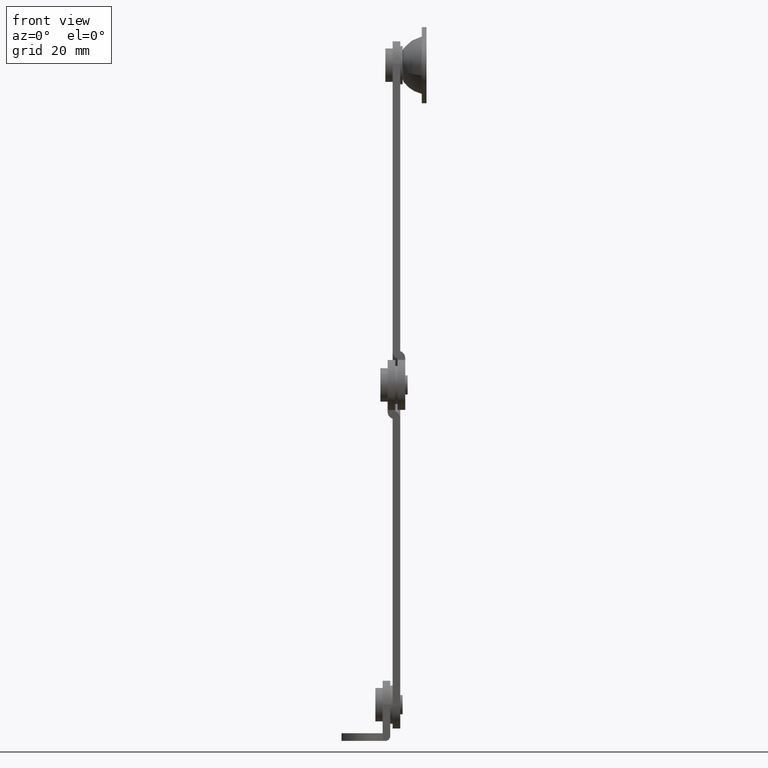
[diagram: clean part render]
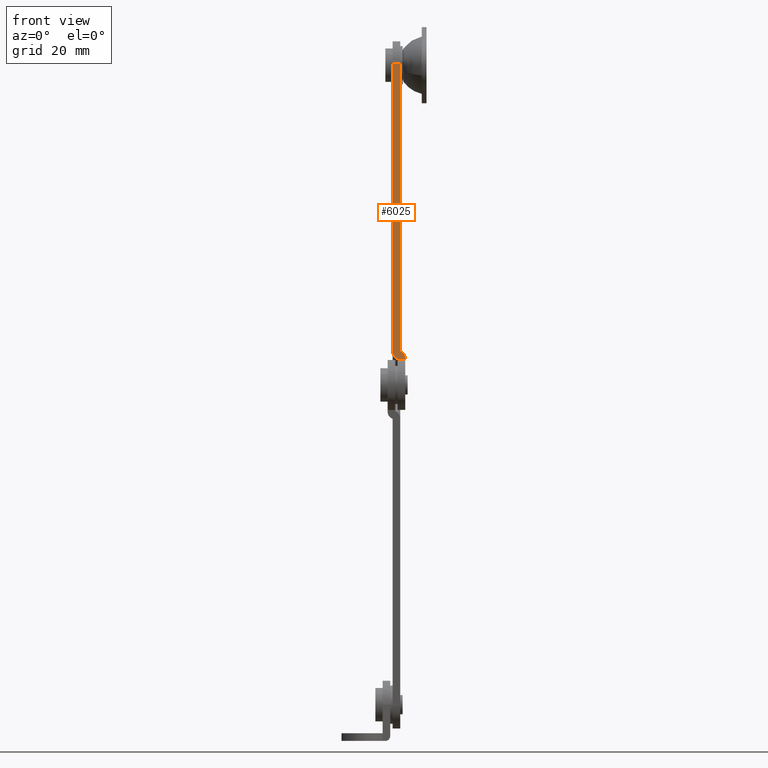
[diagram: same view with one face highlighted and labeled with its STEP entity id]
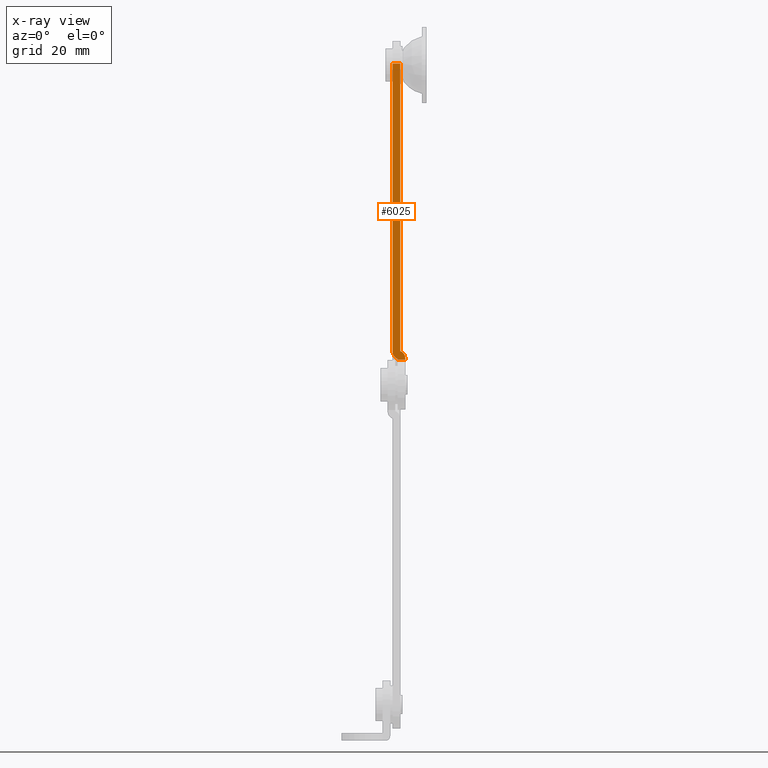
[diagram: x-ray of the same camera — body ghosted, the highlighted face saturated]
A machine part, front view. The second image highlights one B-rep face of the part: STEP entity #6025.
The next image is the same camera in x-ray: the body ghosted, the highlighted face saturated — about 0% of this face is hidden behind the body in this view.
In plain terms, the highlighted face is a freeform B-spline surface patch.
Its self-contained STEP definition (entity closure, byte-faithful):
#5635=CARTESIAN_POINT('',(5.750000000000150,0.119508596305832,7.100002070009940));
#5636=VERTEX_POINT('',#5635);
#5637=CARTESIAN_POINT('',(6.799988000000210,0.022497064331722,5.598469065917870));
#5638=VERTEX_POINT('',#5637);
#5639=CARTESIAN_POINT('',(5.750000000000150,0.119508596305832,7.100002070009940));
#5640=CARTESIAN_POINT('',(5.902865645221754,0.115895839977721,7.044084255374890));
#5641=CARTESIAN_POINT('',(6.173158352001389,0.106268994459565,6.895081080426080));
#5642=CARTESIAN_POINT('',(6.520090005830952,0.083703497424589,6.545814989454608));
#5643=CARTESIAN_POINT('',(6.747072347517258,0.055298765157293,6.106169907021228));
#5644=CARTESIAN_POINT('',(6.800129264490392,0.032993774875251,5.760935908722954));
#5645=CARTESIAN_POINT('',(6.799988000000210,0.022497064331722,5.598469065917870));
#5646=B_SPLINE_CURVE_WITH_KNOTS('',3,(#5639,#5640,#5641,#5642,#5643,#5644,#5645),.UNSPECIFIED.,.F.,.U.,(4,1,1,1,4),(0.000000148634530,0.488432385573569,0.915819414199030,1.465296859451666,1.953729096390807),.UNSPECIFIED.);
#5647=EDGE_CURVE('',#5636,#5638,#5646,.T.);
#5707=CARTESIAN_POINT('',(5.199997000000080,0.016133614108532,5.499976336903260));
#5708=VERTEX_POINT('',#5707);
#5709=CARTESIAN_POINT('',(4.149994000000104,0.113150020728135,7.001584790181060));
#5710=VERTEX_POINT('',#5709);
#5711=CARTESIAN_POINT('',(5.199997000000080,0.016133614108532,5.499976336903260));
#5712=CARTESIAN_POINT('',(5.028012669191305,0.020197852203039,5.562882132855757));
#5713=CARTESIAN_POINT('',(4.795655070093202,0.028862902844843,5.696998760601458));
#5714=CARTESIAN_POINT('',(4.488270674448424,0.048120178358980,5.995060590622809));
#5715=CARTESIAN_POINT('',(4.232239585134977,0.073799779725082,6.392526419669001));
#5716=CARTESIAN_POINT('',(4.149665801052113,0.098714888095478,6.778159516656356));
#5717=CARTESIAN_POINT('',(4.149994000000104,0.113150020728135,7.001584790181060));
#5718=B_SPLINE_CURVE_WITH_KNOTS('',3,(#5711,#5712,#5713,#5714,#5715,#5716,#5717),.UNSPECIFIED.,.F.,.U.,(4,1,1,1,4),(0.000000148382529,0.549483280094432,0.793706811312378,1.282095171301310,1.953694324578051),.UNSPECIFIED.);
#5719=EDGE_CURVE('',#5708,#5710,#5718,.T.);
#5796=CARTESIAN_POINT('',(5.199997000000080,-0.000016938251504,5.249999999972681));
#5797=VERTEX_POINT('',#5796);
#5815=CARTESIAN_POINT('',(5.199997000000080,-0.000016938251504,5.249999999972681));
#5816=CARTESIAN_POINT('',(5.199997000000080,0.016133614108532,5.499976336903260));
#5817=QUASI_UNIFORM_CURVE('',1,(#5815,#5816),.UNSPECIFIED.,.F.,.U.);
#5818=EDGE_CURVE('',#5797,#5708,#5817,.T.);
#5879=CARTESIAN_POINT('',(6.799988000000160,-0.000016938251505,5.249999999972681));
#5880=VERTEX_POINT('',#5879);
#5897=CARTESIAN_POINT('',(5.199997000000080,-0.000016938251504,5.249999999972681));
#5898=CARTESIAN_POINT('',(6.799988000000160,-0.000016938251505,5.249999999972681));
#5899=QUASI_UNIFORM_CURVE('',1,(#5897,#5898),.UNSPECIFIED.,.F.,.U.);
#5900=EDGE_CURVE('',#5797,#5880,#5899,.T.);
#5990=CARTESIAN_POINT('',(4.017626689922651,-0.200336057744270,2.149484389629641));
#5991=CARTESIAN_POINT('',(4.017626689922651,4.210695227059865,70.422904275254297));
#5992=CARTESIAN_POINT('',(6.932355073149687,-0.200336057744270,2.149484389629641));
#5993=CARTESIAN_POINT('',(6.932355073149687,4.210695227059865,70.422904275254297));
#5994=B_SPLINE_SURFACE_WITH_KNOTS('',1,1,((#5990,#5992),(#5991,#5993)),.UNSPECIFIED.,.F.,.F.,.U.,(2,2),(2,2),(0.0,68.415766164491117),(0.0,2.914728383227036),.UNSPECIFIED.);
#5995=CARTESIAN_POINT('',(5.750000000000150,4.010375993343851,67.322386896976582));
#5996=VERTEX_POINT('',#5995);
#5997=CARTESIAN_POINT('',(5.750000000000150,0.119508596305832,7.100002070009940));
#5998=CARTESIAN_POINT('',(5.750000000000150,4.010375993343851,67.322386896976582));
#5999=QUASI_UNIFORM_CURVE('',1,(#5997,#5998),.UNSPECIFIED.,.F.,.U.);
#6000=EDGE_CURVE('',#5636,#5996,#5999,.T.);
#6001=ORIENTED_EDGE('',*,*,#6000,.T.);
#6002=CARTESIAN_POINT('',(4.149994000000055,4.010376000000001,67.322387000000091));
#6003=VERTEX_POINT('',#6002);
#6004=CARTESIAN_POINT('',(4.149994000000055,4.010376000000001,67.322387000000091));
#6005=CARTESIAN_POINT('',(5.750000000000150,4.010375993343851,67.322386896976582));
#6006=QUASI_UNIFORM_CURVE('',1,(#6004,#6005),.UNSPECIFIED.,.F.,.U.);
#6007=EDGE_CURVE('',#6003,#5996,#6006,.T.);
#6008=ORIENTED_EDGE('',*,*,#6007,.F.);
#6009=CARTESIAN_POINT('',(4.149994000000055,4.010376000000001,67.322387000000091));
#6010=CARTESIAN_POINT('',(4.149994000000104,0.113150020728135,7.001584790181060));
#6011=QUASI_UNIFORM_CURVE('',1,(#6009,#6010),.UNSPECIFIED.,.F.,.U.);
#6012=EDGE_CURVE('',#6003,#5710,#6011,.T.);
#6013=ORIENTED_EDGE('',*,*,#6012,.T.);
#6014=ORIENTED_EDGE('',*,*,#5719,.F.);
#6015=ORIENTED_EDGE('',*,*,#5818,.F.);
#6016=ORIENTED_EDGE('',*,*,#5900,.T.);
#6017=CARTESIAN_POINT('',(6.799988000000210,0.022497064331722,5.598469065917870));
#6018=CARTESIAN_POINT('',(6.799988000000160,-0.000016938251505,5.249999999972681));
#6019=QUASI_UNIFORM_CURVE('',1,(#6017,#6018),.UNSPECIFIED.,.F.,.U.);
#6020=EDGE_CURVE('',#5638,#5880,#6019,.T.);
#6021=ORIENTED_EDGE('',*,*,#6020,.F.);
#6022=ORIENTED_EDGE('',*,*,#5647,.F.);
#6023=EDGE_LOOP('',(#6001,#6008,#6013,#6014,#6015,#6016,#6021,#6022));
#6024=FACE_OUTER_BOUND('',#6023,.T.);
#6025=ADVANCED_FACE('',(#6024),#5994,.F.);